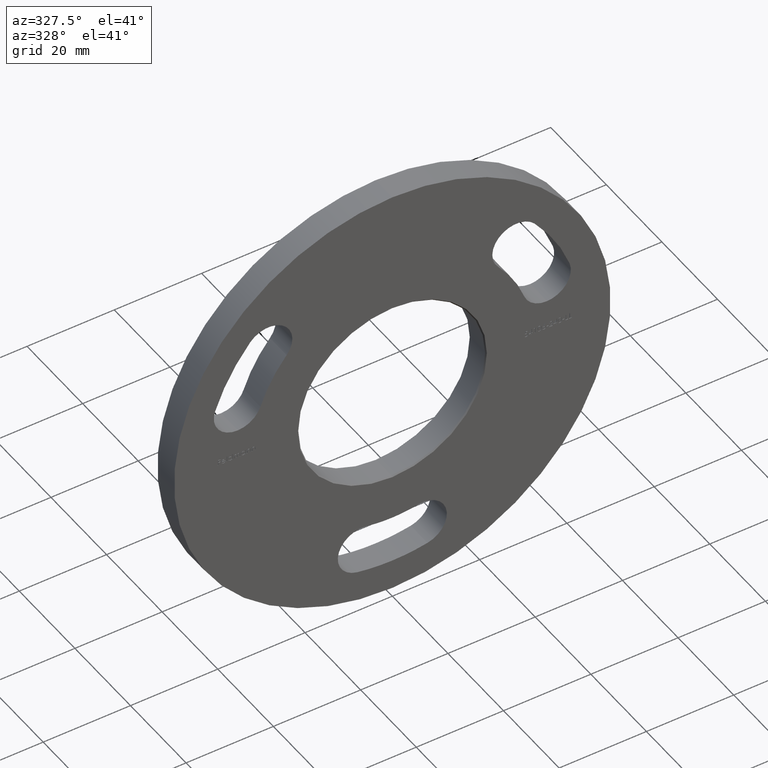
[diagram: clean part render]
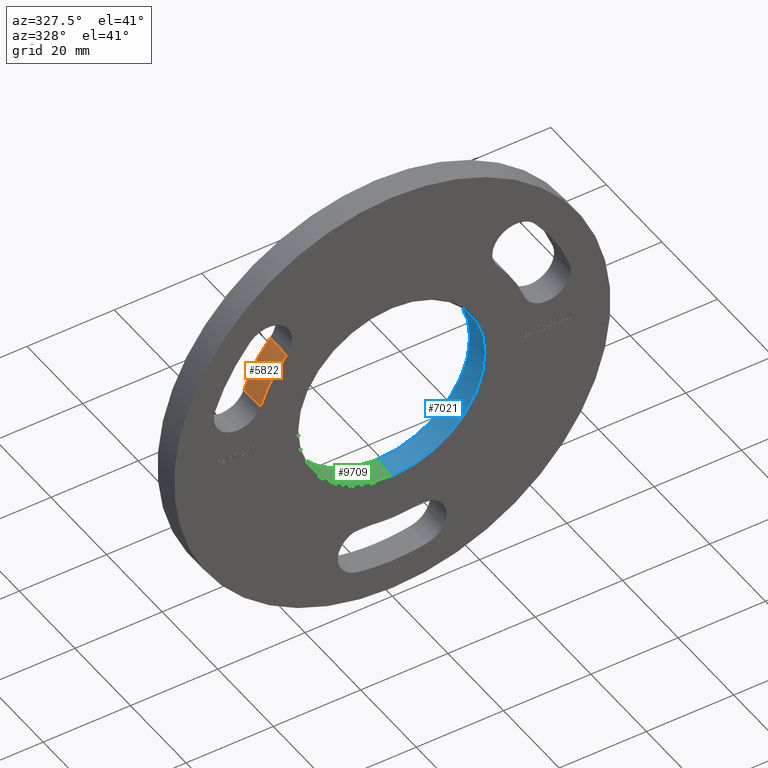
[diagram: same view with three faces highlighted in distinct colors, each labeled with its STEP entity id]
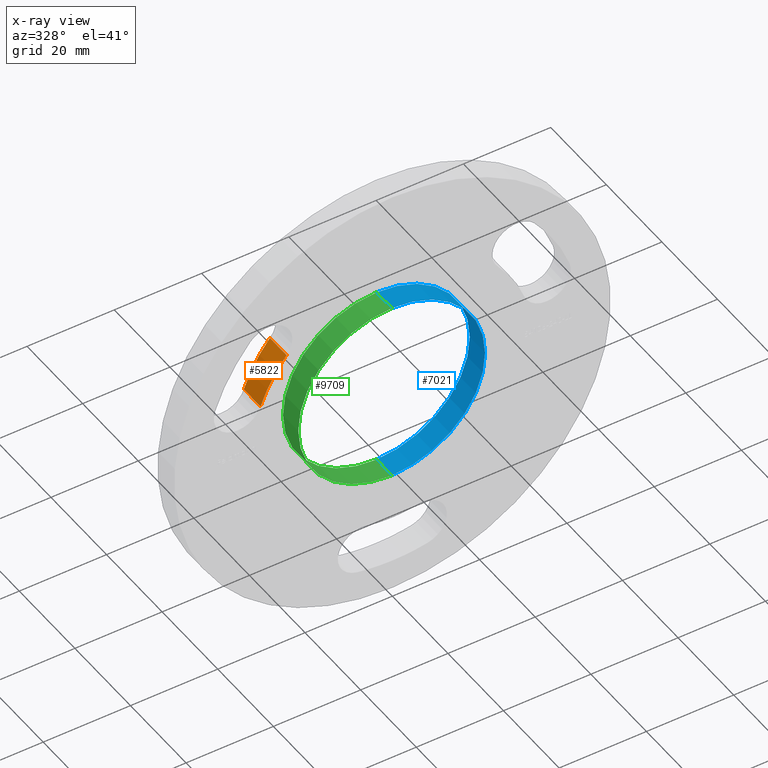
[diagram: x-ray of the same camera — body ghosted, the three highlighted faces saturated]
A machine part, auxiliary view with three faces highlighted in distinct colors.
The next image is the same camera in x-ray (body ghosted, the three faces saturated) — at least one of them is partly hidden behind the body in this view.
Their STEP definitions:

[orange] entity #5822 — the highlighted cylindrical surface (partial cylindrical patch) has radius 32 mm, axis along (-0, -1, -0).
#565 = VECTOR ( 'NONE', #6434, 1000.000000000000000 ) ;
#1145 = CARTESIAN_POINT ( 'NONE',  ( -30.21238000289838510, 0.000000000000000000, 10.54571451161395501 ) ) ;
#2053 = DIRECTION ( 'NONE',  ( 0.000000000000000000, 0.000000000000000000, -1.000000000000000000 ) ) ;
#2253 = VERTEX_POINT ( 'NONE', #8300 ) ;
#3007 = FACE_OUTER_BOUND ( 'NONE', #8650, .T. ) ;
#3866 = DIRECTION ( 'NONE',  ( 0.000000000000000000, 0.000000000000000000, 1.000000000000000000 ) ) ;
#3956 = DIRECTION ( 'NONE',  ( -0.000000000000000000, -1.000000000000000000, -0.000000000000000000 ) ) ;
#4246 = AXIS2_PLACEMENT_3D ( 'NONE', #8076, #3956, #3866 ) ;
#4453 = CYLINDRICAL_SURFACE ( 'NONE', #4780, 31.99999999999997158 ) ;
#4465 = CARTESIAN_POINT ( 'NONE',  ( -30.21238000289838510, 6.000000000000000000, 10.54571451161395501 ) ) ;
#4780 = AXIS2_PLACEMENT_3D ( 'NONE', #10198, #7157, #2053 ) ;
#5724 = CARTESIAN_POINT ( 'NONE',  ( -24.23904666956506659, 6.000000000000000000, 20.89183133549203575 ) ) ;
#5734 = DIRECTION ( 'NONE',  ( 0.000000000000000000, 0.000000000000000000, 1.000000000000000000 ) ) ;
#5822 = ADVANCED_FACE ( 'NONE', ( #3007 ), #4453, .T. ) ;
#5902 = VERTEX_POINT ( 'NONE', #6513 ) ;
#5912 = CIRCLE ( 'NONE', #4246, 31.99999999999997158 ) ;
#6186 = VERTEX_POINT ( 'NONE', #1145 ) ;
#6434 = DIRECTION ( 'NONE',  ( -0.000000000000000000, -1.000000000000000000, -0.000000000000000000 ) ) ;
#6442 = ORIENTED_EDGE ( 'NONE', *, *, #12814, .T. ) ;
#6513 = CARTESIAN_POINT ( 'NONE',  ( -24.23904666956507725, 6.000000000000000000, 20.89183133549204641 ) ) ;
#6826 = AXIS2_PLACEMENT_3D ( 'NONE', #10844, #8869, #5734 ) ;
#7063 = CARTESIAN_POINT ( 'NONE',  ( -24.23904666956506659, 0.000000000000000000, 20.89183133549203575 ) ) ;
#7157 = DIRECTION ( 'NONE',  ( -0.000000000000000000, -1.000000000000000000, -0.000000000000000000 ) ) ;
#7222 = ORIENTED_EDGE ( 'NONE', *, *, #10086, .F. ) ;
#7421 = ORIENTED_EDGE ( 'NONE', *, *, #11966, .F. ) ;
#7708 = CIRCLE ( 'NONE', #6826, 31.99999999999997158 ) ;
#8076 = CARTESIAN_POINT ( 'NONE',  ( 0.000000000000000000, 6.000000000000000000, 6.591949208711866959E-14 ) ) ;
#8300 = CARTESIAN_POINT ( 'NONE',  ( -30.21238000289838510, 6.000000000000000000, 10.54571451161395501 ) ) ;
#8625 = ORIENTED_EDGE ( 'NONE', *, *, #9497, .T. ) ;
#8650 = EDGE_LOOP ( 'NONE', ( #7421, #7222, #6442, #8625 ) ) ;
#8869 = DIRECTION ( 'NONE',  ( -0.000000000000000000, -1.000000000000000000, -0.000000000000000000 ) ) ;
#9179 = LINE ( 'NONE', #5724, #11916 ) ;
#9497 = EDGE_CURVE ( 'NONE', #2253, #6186, #10484, .T. ) ;
#9851 = DIRECTION ( 'NONE',  ( -0.000000000000000000, -1.000000000000000000, -0.000000000000000000 ) ) ;
#10086 = EDGE_CURVE ( 'NONE', #5902, #12568, #9179, .T. ) ;
#10198 = CARTESIAN_POINT ( 'NONE',  ( 0.000000000000000000, 6.000000000000000000, 6.591949208711866959E-14 ) ) ;
#10484 = LINE ( 'NONE', #4465, #565 ) ;
#10844 = CARTESIAN_POINT ( 'NONE',  ( 0.000000000000000000, 0.000000000000000000, 6.591949208711866959E-14 ) ) ;
#11916 = VECTOR ( 'NONE', #9851, 1000.000000000000000 ) ;
#11966 = EDGE_CURVE ( 'NONE', #12568, #6186, #7708, .T. ) ;
#12568 = VERTEX_POINT ( 'NONE', #7063 ) ;
#12814 = EDGE_CURVE ( 'NONE', #5902, #2253, #5912, .T. ) ;

[blue] entity #7021 — the highlighted cylindrical surface (partial cylindrical patch) has radius 21.4 mm, axis along (-0, 1, -0).
#504 = ORIENTED_EDGE ( 'NONE', *, *, #746, .F. ) ;
#746 = EDGE_CURVE ( 'NONE', #9283, #2480, #8314, .T. ) ;
#747 = CARTESIAN_POINT ( 'NONE',  ( 0.000000000000000000, 0.2499999999999794054, 0.000000000000000000 ) ) ;
#761 = LINE ( 'NONE', #1792, #12470 ) ;
#1142 = DIRECTION ( 'NONE',  ( 0.000000000000000000, 0.000000000000000000, 1.000000000000000000 ) ) ;
#1334 = AXIS2_PLACEMENT_3D ( 'NONE', #6570, #4557, #8675 ) ;
#1656 = DIRECTION ( 'NONE',  ( -0.000000000000000000, 1.000000000000000000, -0.000000000000000000 ) ) ;
#1792 = CARTESIAN_POINT ( 'NONE',  ( 0.000000000000000000, 0.000000000000000000, 21.39999999999999858 ) ) ;
#1999 = EDGE_LOOP ( 'NONE', ( #504, #2690, #6222, #12257 ) ) ;
#2083 = DIRECTION ( 'NONE',  ( -0.000000000000000000, 1.000000000000000000, -0.000000000000000000 ) ) ;
#2480 = VERTEX_POINT ( 'NONE', #2763 ) ;
#2690 = ORIENTED_EDGE ( 'NONE', *, *, #2864, .T. ) ;
#2763 = CARTESIAN_POINT ( 'NONE',  ( 2.620744150175335878E-15, 5.750000000000007105, -21.39999999999999858 ) ) ;
#2864 = EDGE_CURVE ( 'NONE', #9283, #10602, #7809, .T. ) ;
#3128 = EDGE_CURVE ( 'NONE', #10602, #7171, #761, .T. ) ;
#3158 = CARTESIAN_POINT ( 'NONE',  ( 0.000000000000000000, 0.000000000000000000, 0.000000000000000000 ) ) ;
#4557 = DIRECTION ( 'NONE',  ( 0.000000000000000000, 1.000000000000000000, 0.000000000000000000 ) ) ;
#5005 = CARTESIAN_POINT ( 'NONE',  ( 2.620744150175335878E-15, 0.2499999999999794054, -21.39999999999999858 ) ) ;
#5340 = CIRCLE ( 'NONE', #1334, 21.39999999999999858 ) ;
#5873 = DIRECTION ( 'NONE',  ( 0.000000000000000000, 0.000000000000000000, 1.000000000000000000 ) ) ;
#6222 = ORIENTED_EDGE ( 'NONE', *, *, #3128, .T. ) ;
#6362 = DIRECTION ( 'NONE',  ( -0.000000000000000000, 1.000000000000000000, -0.000000000000000000 ) ) ;
#6570 = CARTESIAN_POINT ( 'NONE',  ( 0.000000000000000000, 5.750000000000007105, 0.000000000000000000 ) ) ;
#6858 = AXIS2_PLACEMENT_3D ( 'NONE', #747, #8921, #5873 ) ;
#7021 = ADVANCED_FACE ( 'NONE', ( #7483 ), #9569, .F. ) ;
#7171 = VERTEX_POINT ( 'NONE', #11587 ) ;
#7361 = AXIS2_PLACEMENT_3D ( 'NONE', #3158, #2083, #1142 ) ;
#7483 = FACE_OUTER_BOUND ( 'NONE', #1999, .T. ) ;
#7809 = CIRCLE ( 'NONE', #6858, 21.39999999999999858 ) ;
#8314 = LINE ( 'NONE', #8331, #10717 ) ;
#8331 = CARTESIAN_POINT ( 'NONE',  ( 2.620744150175335878E-15, 0.000000000000000000, -21.39999999999999858 ) ) ;
#8675 = DIRECTION ( 'NONE',  ( 0.000000000000000000, 0.000000000000000000, 1.000000000000000000 ) ) ;
#8921 = DIRECTION ( 'NONE',  ( -0.000000000000000000, -1.000000000000000000, -0.000000000000000000 ) ) ;
#9283 = VERTEX_POINT ( 'NONE', #5005 ) ;
#9569 = CYLINDRICAL_SURFACE ( 'NONE', #7361, 21.39999999999999858 ) ;
#9576 = EDGE_CURVE ( 'NONE', #7171, #2480, #5340, .T. ) ;
#10602 = VERTEX_POINT ( 'NONE', #10875 ) ;
#10717 = VECTOR ( 'NONE', #6362, 1000.000000000000000 ) ;
#10875 = CARTESIAN_POINT ( 'NONE',  ( 0.000000000000000000, 0.2499999999999794054, 21.39999999999999858 ) ) ;
#11587 = CARTESIAN_POINT ( 'NONE',  ( 0.000000000000000000, 5.750000000000007105, 21.39999999999999858 ) ) ;
#12257 = ORIENTED_EDGE ( 'NONE', *, *, #9576, .T. ) ;
#12470 = VECTOR ( 'NONE', #1656, 1000.000000000000000 ) ;

[green] entity #9709 — the highlighted cylindrical surface (partial cylindrical patch) has radius 21.4 mm, axis along (-0, 1, -0).
#164 = EDGE_CURVE ( 'NONE', #2480, #7171, #1429, .T. ) ;
#746 = EDGE_CURVE ( 'NONE', #9283, #2480, #8314, .T. ) ;
#758 = AXIS2_PLACEMENT_3D ( 'NONE', #5528, #7639, #6651 ) ;
#760 = DIRECTION ( 'NONE',  ( 0.000000000000000000, 0.000000000000000000, 1.000000000000000000 ) ) ;
#761 = LINE ( 'NONE', #1792, #12470 ) ;
#1429 = CIRCLE ( 'NONE', #9384, 21.39999999999999858 ) ;
#1656 = DIRECTION ( 'NONE',  ( -0.000000000000000000, 1.000000000000000000, -0.000000000000000000 ) ) ;
#1792 = CARTESIAN_POINT ( 'NONE',  ( 0.000000000000000000, 0.000000000000000000, 21.39999999999999858 ) ) ;
#2480 = VERTEX_POINT ( 'NONE', #2763 ) ;
#2763 = CARTESIAN_POINT ( 'NONE',  ( 2.620744150175335878E-15, 5.750000000000007105, -21.39999999999999858 ) ) ;
#3128 = EDGE_CURVE ( 'NONE', #10602, #7171, #761, .T. ) ;
#3132 = CIRCLE ( 'NONE', #758, 21.39999999999999858 ) ;
#3173 = ORIENTED_EDGE ( 'NONE', *, *, #8385, .T. ) ;
#5005 = CARTESIAN_POINT ( 'NONE',  ( 2.620744150175335878E-15, 0.2499999999999794054, -21.39999999999999858 ) ) ;
#5033 = DIRECTION ( 'NONE',  ( 0.000000000000000000, 0.000000000000000000, 1.000000000000000000 ) ) ;
#5528 = CARTESIAN_POINT ( 'NONE',  ( 0.000000000000000000, 0.2499999999999794054, 0.000000000000000000 ) ) ;
#6362 = DIRECTION ( 'NONE',  ( -0.000000000000000000, 1.000000000000000000, -0.000000000000000000 ) ) ;
#6651 = DIRECTION ( 'NONE',  ( 0.000000000000000000, 0.000000000000000000, 1.000000000000000000 ) ) ;
#7171 = VERTEX_POINT ( 'NONE', #11587 ) ;
#7438 = ORIENTED_EDGE ( 'NONE', *, *, #3128, .F. ) ;
#7439 = FACE_OUTER_BOUND ( 'NONE', #9732, .T. ) ;
#7639 = DIRECTION ( 'NONE',  ( -0.000000000000000000, -1.000000000000000000, -0.000000000000000000 ) ) ;
#8078 = DIRECTION ( 'NONE',  ( 0.000000000000000000, 1.000000000000000000, 0.000000000000000000 ) ) ;
#8314 = LINE ( 'NONE', #8331, #10717 ) ;
#8331 = CARTESIAN_POINT ( 'NONE',  ( 2.620744150175335878E-15, 0.000000000000000000, -21.39999999999999858 ) ) ;
#8385 = EDGE_CURVE ( 'NONE', #10602, #9283, #3132, .T. ) ;
#9136 = AXIS2_PLACEMENT_3D ( 'NONE', #13197, #13064, #760 ) ;
#9283 = VERTEX_POINT ( 'NONE', #5005 ) ;
#9384 = AXIS2_PLACEMENT_3D ( 'NONE', #11187, #8078, #5033 ) ;
#9689 = CYLINDRICAL_SURFACE ( 'NONE', #9136, 21.39999999999999858 ) ;
#9709 = ADVANCED_FACE ( 'NONE', ( #7439 ), #9689, .F. ) ;
#9732 = EDGE_LOOP ( 'NONE', ( #3173, #12970, #10213, #7438 ) ) ;
#10213 = ORIENTED_EDGE ( 'NONE', *, *, #164, .T. ) ;
#10602 = VERTEX_POINT ( 'NONE', #10875 ) ;
#10717 = VECTOR ( 'NONE', #6362, 1000.000000000000000 ) ;
#10875 = CARTESIAN_POINT ( 'NONE',  ( 0.000000000000000000, 0.2499999999999794054, 21.39999999999999858 ) ) ;
#11187 = CARTESIAN_POINT ( 'NONE',  ( 0.000000000000000000, 5.750000000000007105, 0.000000000000000000 ) ) ;
#11587 = CARTESIAN_POINT ( 'NONE',  ( 0.000000000000000000, 5.750000000000007105, 21.39999999999999858 ) ) ;
#12470 = VECTOR ( 'NONE', #1656, 1000.000000000000000 ) ;
#12970 = ORIENTED_EDGE ( 'NONE', *, *, #746, .T. ) ;
#13064 = DIRECTION ( 'NONE',  ( -0.000000000000000000, 1.000000000000000000, -0.000000000000000000 ) ) ;
#13197 = CARTESIAN_POINT ( 'NONE',  ( 0.000000000000000000, 0.000000000000000000, 0.000000000000000000 ) ) ;